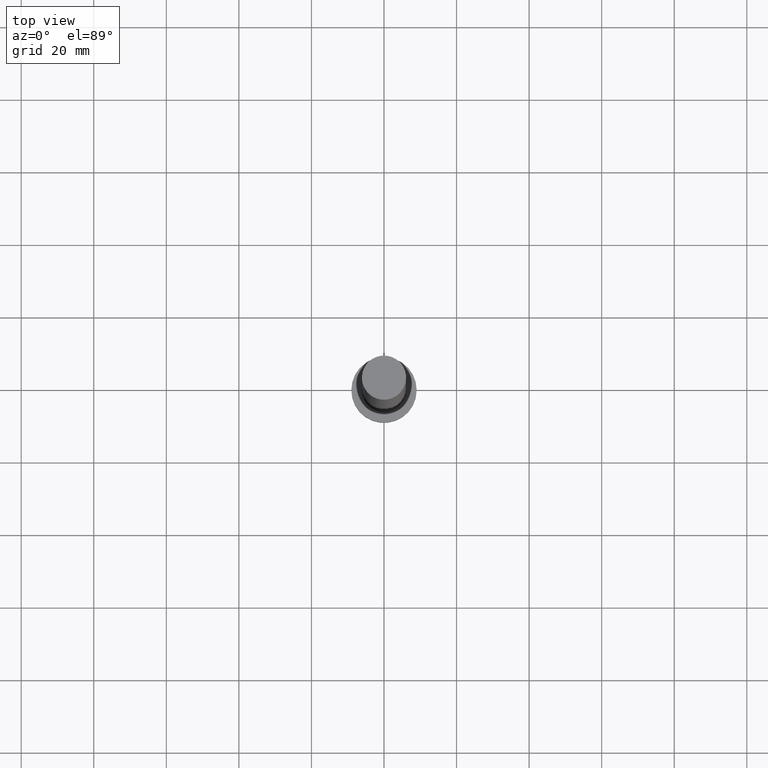
[diagram: clean part render]
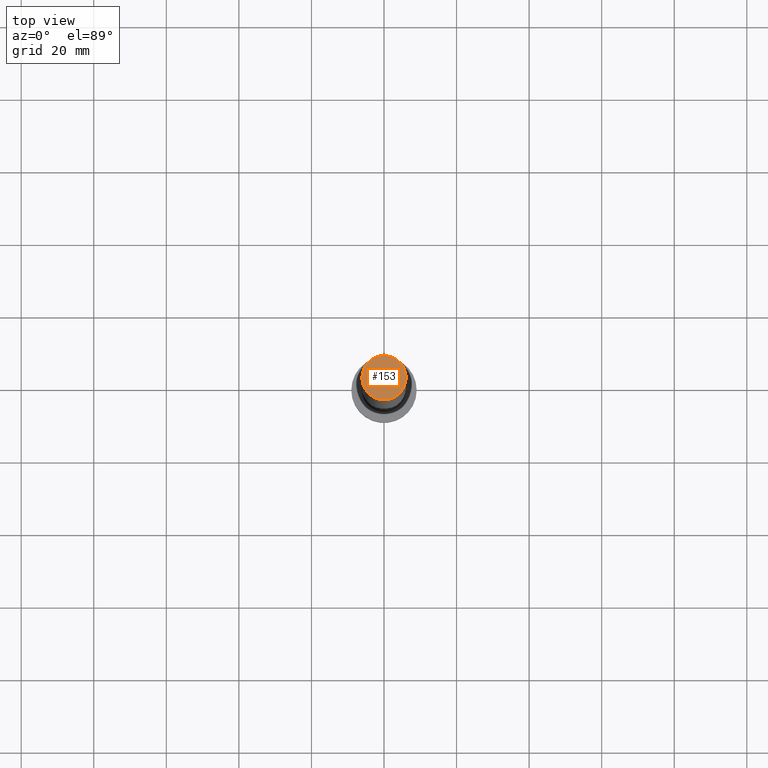
[diagram: same view with one face highlighted and labeled with its STEP entity id]
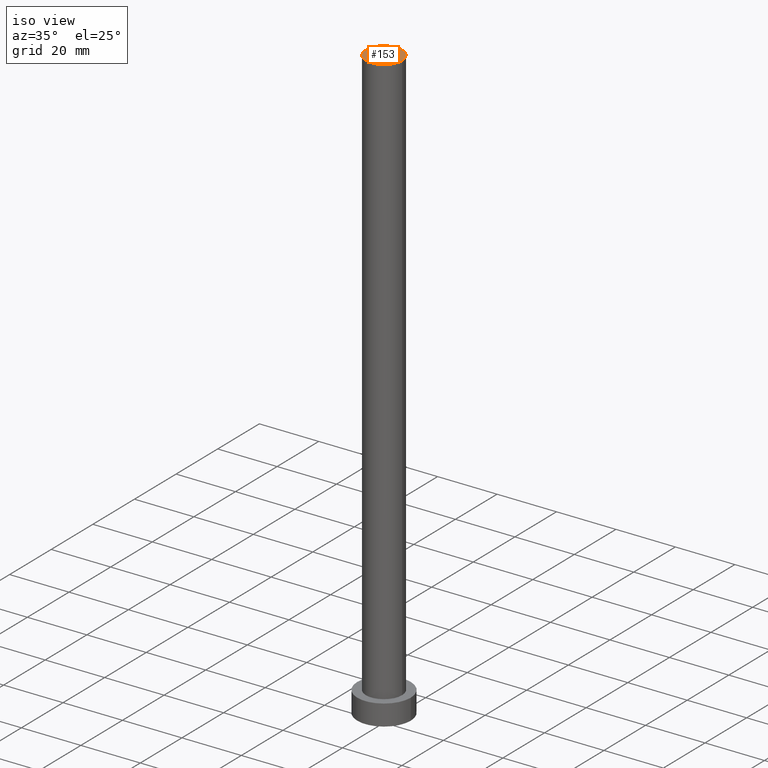
[diagram: same view with one face highlighted and labeled with its STEP entity id]
A machine part, top view. The second image highlights one B-rep face of the part: STEP entity #153.
A second angle (iso view) of the same face is appended — the face is thin or edge-on in the first view.
In plain terms, the highlighted planar face has unit normal (0, 0, 1).
Its self-contained STEP definition (entity closure, byte-faithful):
#5 = DIRECTION ( 'NONE',  ( 1.000000000000000000, 0.000000000000000000, 0.000000000000000000 ) ) ;
#25 = CIRCLE ( 'NONE', #42, 6.099999999999999645 ) ;
#39 = DIRECTION ( 'NONE',  ( 0.000000000000000000, 0.000000000000000000, 1.000000000000000000 ) ) ;
#42 = AXIS2_PLACEMENT_3D ( 'NONE', #160, #39, #5 ) ;
#70 = ORIENTED_EDGE ( 'NONE', *, *, #219, .T. ) ;
#81 = PLANE ( 'NONE',  #108 ) ;
#108 = AXIS2_PLACEMENT_3D ( 'NONE', #139, #181, #135 ) ;
#114 = AXIS2_PLACEMENT_3D ( 'NONE', #157, #156, #120 ) ;
#118 = CARTESIAN_POINT ( 'NONE',  ( 6.099999999999999645, 7.470345474798854293E-16, 200.0000000000000000 ) ) ;
#120 = DIRECTION ( 'NONE',  ( 1.000000000000000000, 0.000000000000000000, 0.000000000000000000 ) ) ;
#125 = CIRCLE ( 'NONE', #114, 6.099999999999999645 ) ;
#133 = ORIENTED_EDGE ( 'NONE', *, *, #163, .T. ) ;
#135 = DIRECTION ( 'NONE',  ( 1.000000000000000000, 0.000000000000000000, -0.000000000000000000 ) ) ;
#139 = CARTESIAN_POINT ( 'NONE',  ( 0.000000000000000000, 0.000000000000000000, 200.0000000000000000 ) ) ;
#153 = ADVANCED_FACE ( 'NONE', ( #215 ), #81, .T. ) ;
#156 = DIRECTION ( 'NONE',  ( 0.000000000000000000, 0.000000000000000000, 1.000000000000000000 ) ) ;
#157 = CARTESIAN_POINT ( 'NONE',  ( 0.000000000000000000, 0.000000000000000000, 200.0000000000000000 ) ) ;
#160 = CARTESIAN_POINT ( 'NONE',  ( 0.000000000000000000, 0.000000000000000000, 200.0000000000000000 ) ) ;
#163 = EDGE_CURVE ( 'NONE', #188, #186, #25, .T. ) ;
#177 = CARTESIAN_POINT ( 'NONE',  ( -6.099999999999999645, 0.000000000000000000, 200.0000000000000000 ) ) ;
#181 = DIRECTION ( 'NONE',  ( 0.000000000000000000, 0.000000000000000000, 1.000000000000000000 ) ) ;
#186 = VERTEX_POINT ( 'NONE', #177 ) ;
#188 = VERTEX_POINT ( 'NONE', #118 ) ;
#209 = EDGE_LOOP ( 'NONE', ( #70, #133 ) ) ;
#215 = FACE_OUTER_BOUND ( 'NONE', #209, .T. ) ;
#219 = EDGE_CURVE ( 'NONE', #186, #188, #125, .T. ) ;